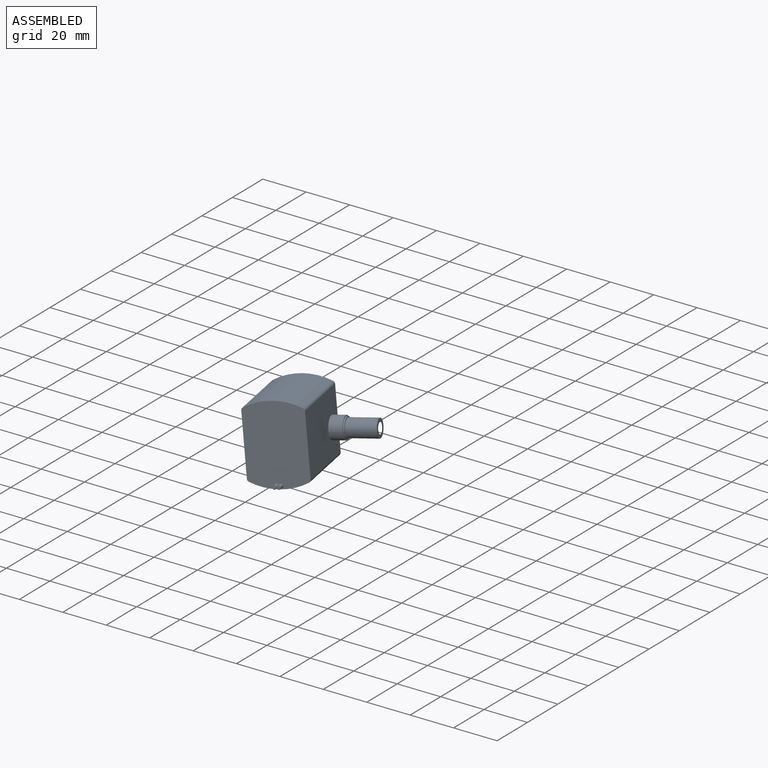
[diagram: assembled view]
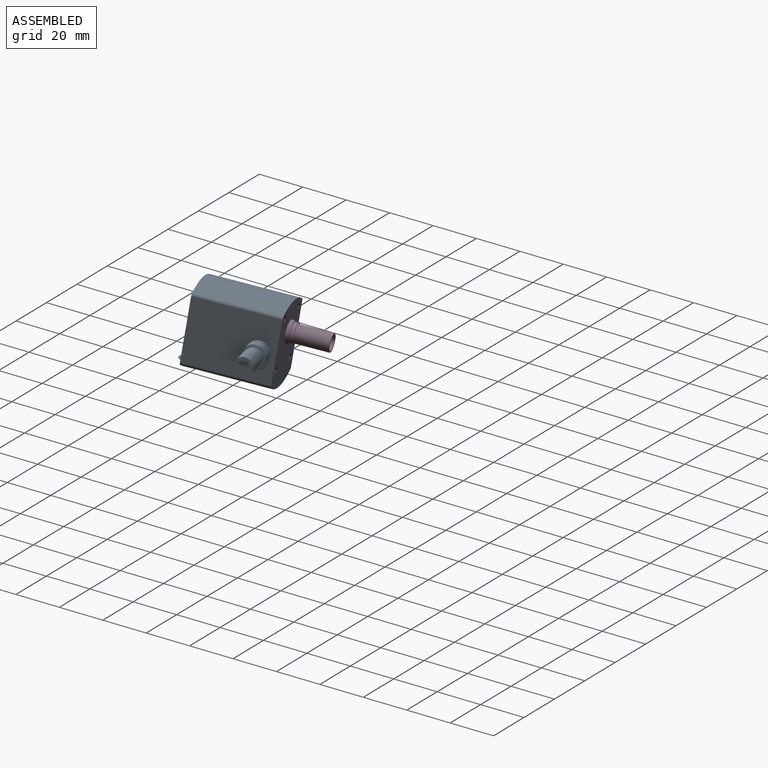
[diagram: assembled view, second angle]
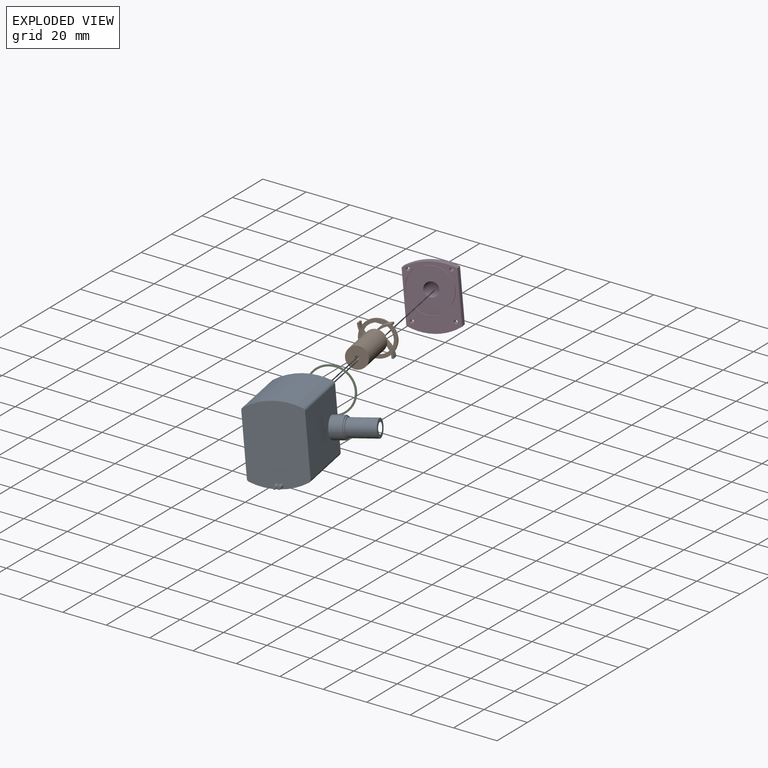
[diagram: exploded view]
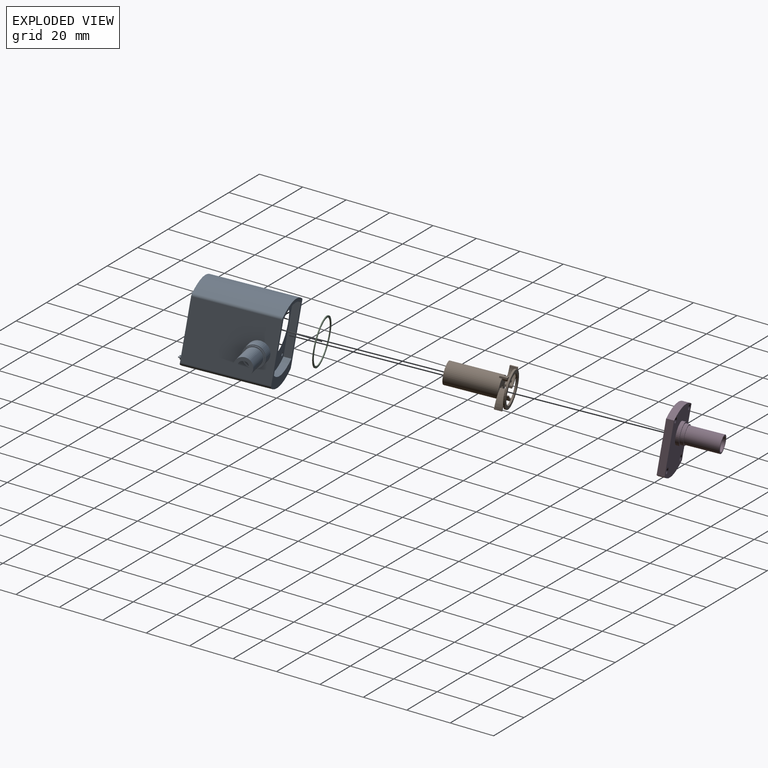
[diagram: exploded view, second angle]
ASSEMBLY  parts=4 mates=7
PART A: 44 faces, bbox 44.5x40.5x34.9 mm
  f0: cylinder r=1.27mm len=36.51mm, axis (0,-1,0), area 51.5mm2, adj f1,f2,f3,f4
  f1: plane 34.93x25.4mm, normal (0,-1,0), area 830.3mm2, adj f0,f2,f4,f5,f6,f7,f8,f9
  f2: plane 36.51x27.03mm, normal (1,0,0), area 913.6mm2, adj f0,f1,f3,f11,f12
  f3: plane 34.93x25.4mm, normal (0,1,0), area 239.2mm2, adj f0,f2,f4,f7,f8,f9,f10,f11
  f4: cylinder r=26.99mm len=36.51mm, axis (0,-1,0), area 907.6mm2, adj f0,f1,f3,f7
  f5: cylinder r=0.79mm len=3.18mm, axis (0,1,0), area 15.8mm2, adj f1,f17
  f6: cylinder r=0.79mm len=3.18mm, axis (0,1,0), area 15.8mm2, adj f1,f18
  f7: cylinder r=1.27mm len=36.51mm, axis (0,-1,0), area 51.5mm2, adj f1,f3,f4,f8
  f8: plane 36.51x27.03mm, normal (-1,0,0), area 986.8mm2, adj f1,f3,f7,f9
  f9: cylinder r=1.27mm len=36.51mm, axis (0,-1,0), area 51.5mm2, adj f1,f3,f8,f10
  f10: cylinder r=26.99mm len=36.51mm, axis (0,-1,0), area 907.6mm2, adj f1,f3,f9,f11
  f11: cylinder r=1.27mm len=36.51mm, axis (0,-1,0), area 51.5mm2, adj f1,f2,f3,f10
  f12: cylinder r=4.83mm len=9.65mm, axis (-1,0,0), area 173.3mm2, adj f2,f19
  f13: plane 23.04x3.18mm, normal (-1,0,0), area 73.1mm2, adj f3,f14,f16,f20
  f14: cylinder r=25.4mm len=22.23mm, axis (0,1,0), area 73mm2, adj f3,f13,f15,f20
  f15: plane 23.04x3.18mm, normal (1,0,0), area 73.1mm2, adj f3,f14,f16,f20
  f16: cylinder r=22.23mm len=22.23mm, axis (0,1,0), area 73.9mm2, adj f3,f13,f15,f20
  f17: plane 1.59x1.59mm, normal (0,-1,0), area 1.8mm2, adj f5,f21
  f18: plane 1.59x1.59mm, normal (0,-1,0), area 1.8mm2, adj f6,f22
  f19: plane 9.65x9.65mm, normal (1,0,0), area 11.1mm2, adj f12,f23
  f20: plane 28.58x22.23mm, normal (0,1,0), area 302.1mm2, adj f13,f14,f15,f16,f24,f25,f26,f27
  f21: cylinder r=0.25mm len=0.79mm, axis (0,1,0), area 1.3mm2, adj f17,f29
  f22: cylinder r=0.25mm len=0.79mm, axis (0,1,0), area 1.3mm2, adj f18,f30
  f23: cylinder r=4.45mm len=8.89mm, axis (-1,0,0), area 17.7mm2, adj f19,f31
  f24: cylinder r=0.79mm len=3.18mm, axis (0,1,0), area 15.8mm2, adj f20,f32
  f25: cylinder r=0.79mm len=3.18mm, axis (0,1,0), area 15.8mm2, adj f20,f33
  f26: cylinder r=0.79mm len=3.18mm, axis (0,1,0), area 15.8mm2, adj f20,f34
  f27: cylinder r=0.79mm len=3.18mm, axis (0,1,0), area 15.8mm2, adj f20,f35
  f28: cylinder r=9.53mm len=19.05mm, axis (0,1,0), area -405.4mm2, adj f20,f36,f37
  f29: plane 0.51x0.51mm, normal (0,-1,0), area 0.2mm2, adj f21
  f30: plane 0.51x0.51mm, normal (0,-1,0), area 0.2mm2, adj f22
  f31: plane 8.89x8.89mm, normal (1,0,0), area 12.6mm2, adj f23,f38
  f32: plane 1.59x1.59mm, normal (0,1,0), area 2mm2, adj f24
  f33: plane 1.59x1.59mm, normal (0,1,0), area 2mm2, adj f25
  f34: plane 1.59x1.59mm, normal (0,1,0), area 2mm2, adj f26
  f35: plane 1.59x1.59mm, normal (0,1,0), area 2mm2, adj f27
  f36: cylinder r=2.38mm len=27.94mm, axis (1,0,0), area 375mm2, adj f28,f43
  f37: plane 19.05x19.05mm, normal (0,1,0), area 213.8mm2, adj f28,f39
  f38: cylinder r=3.97mm len=12.7mm, axis (-1,0,0), area 316.7mm2, adj f31,f43
  f39: cylinder r=4.76mm len=19.05mm, axis (0,1,0), area 570mm2, adj f37,f40
  f40: plane 9.53x9.53mm, normal (0,1,0), area 70mm2, adj f39,f41
  f41: cylinder r=0.64mm len=19.05mm, axis (0,1,0), area 76mm2, adj f40,f42
  f42: plane 1.27x1.27mm, normal (0,1,0), area 1.3mm2, adj f41
  f43: plane 7.94x7.94mm, normal (1,0,0), area 31.7mm2, adj f36,f38
PART B: 39 faces, bbox 15.9x26.2x15.9 mm
  f0: cylinder r=7.94mm len=15.88mm, axis (0,-1,0), area 39.5mm2, adj f2,f3,f4,f5,f6,f15,f16,f17
  f1: cylinder r=6.35mm len=12.7mm, axis (0,-1,0), area 31.6mm2, adj f2,f3,f4,f5,f6,f7,f16,f17
  f2: plane 10.44x4.36mm, normal (0,-1,0), area 16.2mm2, adj f0,f1,f27,f33
  f3: plane 10.44x4.36mm, normal (0,-1,0), area 16.2mm2, adj f0,f1,f6,f26
  f4: plane 10.44x4.36mm, normal (0,-1,0), area 16.2mm2, adj f0,f1,f19,f34
  f5: cylinder r=8.55mm len=6.65mm, axis (0,-1,0), area 24.3mm2, adj f0,f1,f7,f8,f12,f13,f14,f15
  f6: cylinder r=9.34mm len=7.64mm, axis (0,-1,0), area 28.6mm2, adj f0,f1,f3,f7,f8,f12,f13,f14
  f7: plane 4.24x2.95mm, normal (0,1,0), area 3.4mm2, adj f1,f5,f6,f13
  f8: plane 9.53x9.53mm, normal (0,1,0), area 61.6mm2, adj f5,f6,f10,f11,f13,f19,f20,f21
  f9: plane 9.53x9.53mm, normal (0,-1,0), area 69.3mm2, adj f10,f11
  f10: cylinder r=4.76mm len=22.23mm, axis (0,-1,0), area 665.1mm2, adj f8,f9,f12,f24,f31,f38
  f11: cylinder r=0.79mm len=22.23mm, axis (0,-1,0), area 110.8mm2, adj f8,f9
  f12: plane 5.91x2.41mm, normal (0,-1,0), area 4.6mm2, adj f5,f6,f10,f14
  f13: plane 3.2x0.99mm, normal (-1,0,0), area 3.2mm2, adj f5,f6,f7,f8
  f14: plane 3.2x0.79mm, normal (0,0,-1), area 2.5mm2, adj f5,f6,f12,f15
  f15: plane 2.35x0.94mm, normal (0,1,0), area 1.6mm2, adj f0,f5,f6,f14
  f16: plane 15.88x15.88mm, normal (0,1,0), area 71.3mm2, adj f0,f1
  f17: plane 10.44x4.36mm, normal (0,-1,0), area 16.2mm2, adj f0,f1,f5,f20
  f18: plane 4.24x2.95mm, normal (0,1,0), area 3.4mm2, adj f1,f19,f20,f21
  f19: cylinder r=8.55mm len=6.65mm, axis (0,-1,0), area 24.3mm2, adj f0,f1,f4,f8,f18,f21,f22,f23
  f20: cylinder r=9.34mm len=7.64mm, axis (0,-1,0), area 28.6mm2, adj f0,f1,f8,f17,f18,f21,f22,f23
  f21: plane 3.2x0.99mm, normal (0,0,1), area 3.2mm2, adj f8,f18,f19,f20
  f22: plane 3.2x0.79mm, normal (-1,0,0), area 2.5mm2, adj f19,f20,f23,f24
  f23: plane 2.35x0.94mm, normal (0,1,0), area 1.6mm2, adj f0,f19,f20,f22
  f24: plane 5.91x2.41mm, normal (0,-1,0), area 4.6mm2, adj f10,f19,f20,f22
  f25: plane 4.24x2.95mm, normal (0,1,0), area 3.4mm2, adj f1,f26,f27,f28
  f26: cylinder r=8.55mm len=6.65mm, axis (0,-1,0), area 24.3mm2, adj f0,f1,f3,f8,f25,f28,f29,f30
  f27: cylinder r=9.34mm len=7.64mm, axis (0,-1,0), area 28.6mm2, adj f0,f1,f2,f8,f25,f28,f29,f30
  f28: plane 3.2x0.99mm, normal (0,0,-1), area 3.2mm2, adj f8,f25,f26,f27
  f29: plane 3.2x0.79mm, normal (1,0,0), area 2.5mm2, adj f26,f27,f30,f31
  f30: plane 2.35x0.94mm, normal (0,1,0), area 1.6mm2, adj f0,f26,f27,f29
  f31: plane 5.91x2.41mm, normal (0,-1,0), area 4.6mm2, adj f10,f26,f27,f29
  f32: plane 4.24x2.95mm, normal (0,1,0), area 3.4mm2, adj f1,f33,f34,f35
  f33: cylinder r=8.55mm len=6.65mm, axis (0,-1,0), area 24.3mm2, adj f0,f1,f2,f8,f32,f35,f36,f37
  f34: cylinder r=9.34mm len=7.64mm, axis (0,-1,0), area 28.6mm2, adj f0,f1,f4,f8,f32,f35,f36,f37
  f35: plane 3.2x0.99mm, normal (1,0,0), area 3.2mm2, adj f8,f32,f33,f34
  f36: plane 3.2x0.79mm, normal (0,0,1), area 2.5mm2, adj f33,f34,f37,f38
  f37: plane 2.35x0.94mm, normal (0,1,0), area 1.6mm2, adj f0,f33,f34,f36
  f38: plane 5.91x2.41mm, normal (0,-1,0), area 4.6mm2, adj f10,f33,f34,f36
PART C: 4 faces, bbox 20.6x0.4x20.6 mm
  f0: plane 20.64x20.64mm, normal (0,1,0), area 49.5mm2, adj f2,f3
  f1: plane 20.64x20.64mm, normal (0,-1,0), area 49.5mm2, adj f2,f3
  f2: cylinder r=10.32mm len=20.64mm, axis (0,-1,0), area 25.7mm2, adj f0,f1
  f3: cylinder r=9.53mm len=19.05mm, axis (0,-1,0), area 23.8mm2, adj f0,f1
PART D: 25 faces, bbox 28.6x20.6x22.2 mm
  f0: plane 19.05x19.05mm, normal (0,-1,0), area 253.4mm2, adj f7,f24
  f1: plane 28.58x22.23mm, normal (0,1,0), area 503.6mm2, adj f2,f3,f4,f5,f9,f11,f13,f15
  f2: cylinder r=22.23mm len=22.23mm, axis (0,-1,0), area 73.9mm2, adj f1,f3,f5,f6
  f3: plane 23.04x3.18mm, normal (0,0,1), area 73.1mm2, adj f1,f2,f4,f6
  f4: cylinder r=25.4mm len=22.23mm, axis (0,-1,0), area 73mm2, adj f1,f3,f5,f6
  f5: plane 23.04x3.18mm, normal (0,0,-1), area 73.1mm2, adj f1,f2,f4,f6
  f6: plane 28.58x22.23mm, normal (0,-1,0), area 252.7mm2, adj f2,f3,f4,f5,f8,f10,f12,f14
  f7: cylinder r=3.17mm len=20.64mm, axis (0,1,0), area 411.7mm2, adj f0,f17
  f8: cylinder r=0.79mm len=2.7mm, axis (0,1,0), area 13.5mm2, adj f6,f9
  f9: cone r=1.27mm half-angle=45deg, axis (0,1,0), area 4.4mm2, adj f1,f8
  f10: cylinder r=0.79mm len=2.7mm, axis (0,1,0), area 13.5mm2, adj f6,f11
  f11: cone r=1.27mm half-angle=45deg, axis (0,1,0), area 4.4mm2, adj f1,f10
  f12: cylinder r=0.79mm len=2.7mm, axis (0,1,0), area 13.5mm2, adj f6,f13
  f13: cone r=1.27mm half-angle=45deg, axis (0,1,0), area 4.4mm2, adj f1,f12
  f14: cylinder r=0.79mm len=2.7mm, axis (0,1,0), area 13.5mm2, adj f6,f15
  f15: cone r=1.27mm half-angle=45deg, axis (0,1,0), area 4.4mm2, adj f1,f14
  f16: cylinder r=3.81mm len=14.29mm, axis (0,-1,0), area 342mm2, adj f17,f19
  f17: plane 7.62x7.62mm, normal (0,1,0), area 13.9mm2, adj f7,f16
  f18: cylinder r=4.23mm len=8.47mm, axis (0,-1,0), area 42.2mm2, adj f19,f21
  f19: plane 8.47x8.47mm, normal (0,1,0), area 10.7mm2, adj f16,f18
  f20: cylinder r=4.76mm len=9.53mm, axis (0,-1,0), area 47.5mm2, adj f1,f21
  f21: plane 9.53x9.53mm, normal (0,1,0), area 15mm2, adj f18,f20
  f22: cylinder r=10.32mm len=20.64mm, axis (0,-1,0), area 25.7mm2, adj f6,f23
  f23: plane 20.64x20.64mm, normal (0,-1,0), area 49.5mm2, adj f22,f24
  f24: cylinder r=9.53mm len=19.05mm, axis (0,-1,0), area 23.8mm2, adj f0,f23
PLACE A rot(axis=(-0.31,-0.4,0.86),19.9deg) t=(27.03,-78.41,-11.23)mm
PLACE B rot(axis=(-0.21,0.97,0.1),83.5deg) t=(24.02,-70.47,-7.53)mm
PLACE C rot(axis=(-0.39,-0.04,0.92),18.2deg) t=(16.76,-46.34,-10.7)mm
PLACE D rot(axis=(0.09,-0.98,0.19),99.4deg) t=(18.95,-47.53,-24.77)mm
MATE parallel D.f5 <-> A.f2  axis (0.95,0.3,0.12) through (27.27,-41.73,-12.46)mm
MATE planar D.f4 <-> A.f4  axis (0.29,-0.95,0.12) through (18.95,-47.53,-24.77)mm
MATE planar B.f0 <-> A.f28  axis (0.29,-0.95,0.12) through (24.02,-70.47,-7.53)mm
MATE cylindrical B.f0 <-> A.f28  axis (0.29,-0.95,0.12) through (24.02,-70.47,-7.53)mm
MATE cylindrical D.f7 <-> B.f0  axis (0.29,-0.95,0.12) through (12.9,-33.52,-12.39)mm
MATE cylindrical D.f7 <-> C.f2  axis (0.29,-0.95,0.12) through (16.64,-45.96,-10.75)mm
MATE planar C.f2 <-> D.f7  axis (-0.29,0.95,-0.12) through (16.64,-45.96,-10.75)mm
